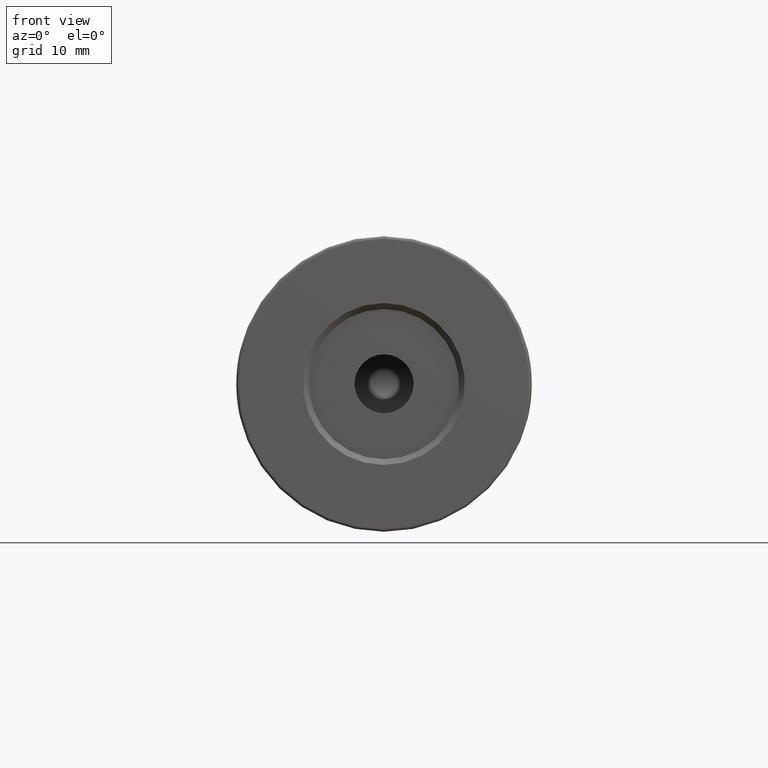
[diagram: clean part render]
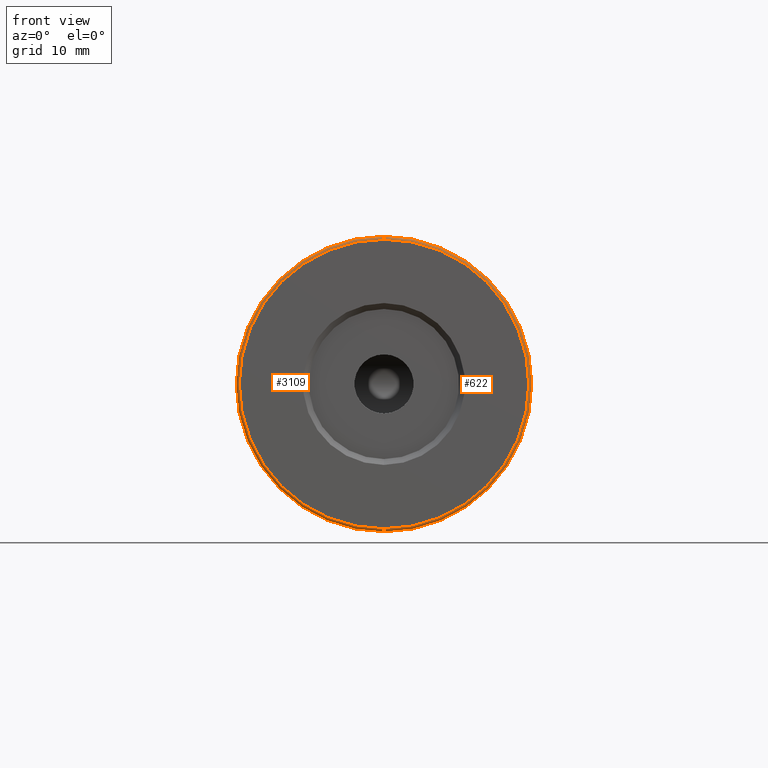
[diagram: same view with one multi-face feature highlighted, each face labeled with its STEP entity id]
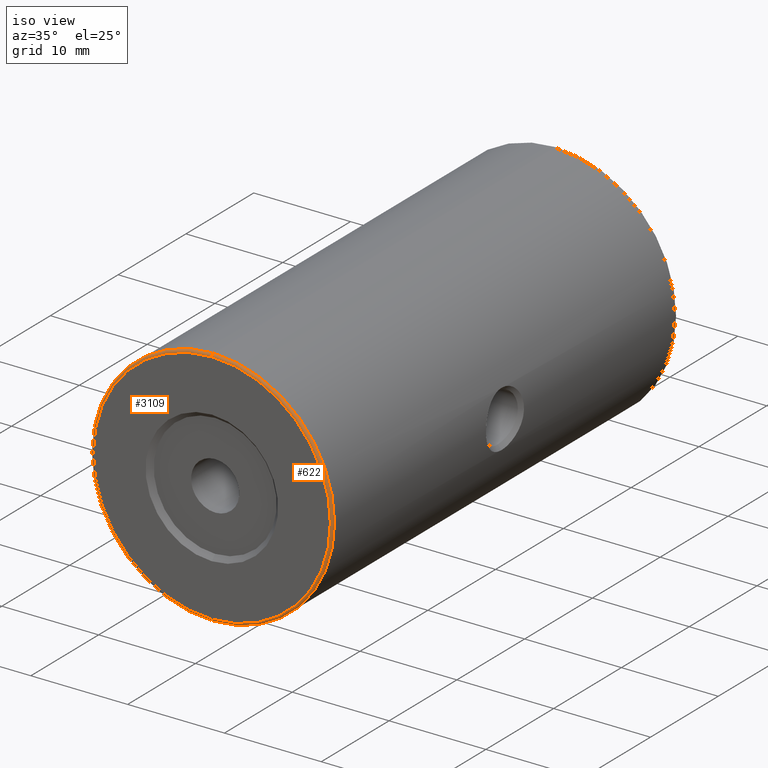
[diagram: same view with one multi-face feature highlighted, each face labeled with its STEP entity id]
A machine part, front view. The highlighted faces form ONE feature: a constant-radius fillet chain: 2 tangent blend faces with common blend radius 0.25 mm. The faces share edges in the B-rep.
A second angle (iso view) of the same feature is appended — it is thin or edge-on in the first view.
Their STEP definitions:
[1] entity #622 (Torus):
#319 = CARTESIAN_POINT ( 'NONE',  ( -22.50520183104453409, -24.00174781523060830, 50.00000000000000000 ) ) ;
#463 = CARTESIAN_POINT ( 'NONE',  ( -22.50520183104453409, -23.75174781523060830, 50.00000000000000000 ) ) ;
#586 = CARTESIAN_POINT ( 'NONE',  ( -22.50520183104453409, -24.00174781523060830, 62.25000000000000000 ) ) ;
#588 = ORIENTED_EDGE ( 'NONE', *, *, #2775, .F. ) ;
#593 = DIRECTION ( 'NONE',  ( -1.000000000000000000, 0.0000000000000000000, 0.0000000000000000000 ) ) ;
#622 = ADVANCED_FACE ( 'NONE', ( #3374 ), #2100, .T. ) ;
#626 = CARTESIAN_POINT ( 'NONE',  ( -22.50520183104453409, -23.75174781523060830, 50.00000000000000000 ) ) ;
#766 = CIRCLE ( 'NONE', #1828, 12.24999999999999645 ) ;
#938 = DIRECTION ( 'NONE',  ( 1.000000000000000000, -0.0000000000000000000, 1.224646799147353207E-16 ) ) ;
#1101 = ORIENTED_EDGE ( 'NONE', *, *, #3253, .T. ) ;
#1210 = AXIS2_PLACEMENT_3D ( 'NONE', #3226, #593, #1637 ) ;
#1385 = DIRECTION ( 'NONE',  ( -0.0000000000000000000, -1.000000000000000000, -0.0000000000000000000 ) ) ;
#1426 = EDGE_CURVE ( 'NONE', #2466, #1564, #2611, .T. ) ;
#1511 = EDGE_CURVE ( 'NONE', #1648, #1793, #766, .T. ) ;
#1564 = VERTEX_POINT ( 'NONE', #2733 ) ;
#1637 = DIRECTION ( 'NONE',  ( 0.0000000000000000000, 0.0000000000000000000, 1.000000000000000000 ) ) ;
#1648 = VERTEX_POINT ( 'NONE', #3104 ) ;
#1649 = DIRECTION ( 'NONE',  ( 0.0000000000000000000, 1.000000000000000000, 0.0000000000000000000 ) ) ;
#1793 = VERTEX_POINT ( 'NONE', #586 ) ;
#1825 = ORIENTED_EDGE ( 'NONE', *, *, #1511, .F. ) ;
#1828 = AXIS2_PLACEMENT_3D ( 'NONE', #319, #1385, #3254 ) ;
#1961 = EDGE_LOOP ( 'NONE', ( #1825, #1101, #2097, #588 ) ) ;
#1998 = DIRECTION ( 'NONE',  ( 0.0000000000000000000, 0.0000000000000000000, -1.000000000000000000 ) ) ;
#2028 = CARTESIAN_POINT ( 'NONE',  ( -22.50520183104453409, -23.75174781523060830, 62.50000000000000000 ) ) ;
#2097 = ORIENTED_EDGE ( 'NONE', *, *, #1426, .F. ) ;
#2098 = AXIS2_PLACEMENT_3D ( 'NONE', #2810, #938, #1998 ) ;
#2100 = TOROIDAL_SURFACE ( 'NONE', #3169, 12.25000000000000000, 0.2500000000000000000 ) ;
#2466 = VERTEX_POINT ( 'NONE', #2028 ) ;
#2495 = AXIS2_PLACEMENT_3D ( 'NONE', #626, #1649, #2713 ) ;
#2611 = CIRCLE ( 'NONE', #2495, 12.49999999999999645 ) ;
#2713 = DIRECTION ( 'NONE',  ( 0.0000000000000000000, 0.0000000000000000000, 1.000000000000000000 ) ) ;
#2733 = CARTESIAN_POINT ( 'NONE',  ( -22.50520183104453409, -23.75174781523060830, 37.50000000000000711 ) ) ;
#2775 = EDGE_CURVE ( 'NONE', #1793, #2466, #2890, .T. ) ;
#2810 = CARTESIAN_POINT ( 'NONE',  ( -22.50520183104453409, -23.75174781523060830, 37.75000000000000711 ) ) ;
#2819 = DIRECTION ( 'NONE',  ( 0.0000000000000000000, 0.0000000000000000000, 1.000000000000000000 ) ) ;
#2837 = CIRCLE ( 'NONE', #2098, 0.2500000000000002220 ) ;
#2890 = CIRCLE ( 'NONE', #1210, 0.2500000000000002220 ) ;
#3104 = CARTESIAN_POINT ( 'NONE',  ( -22.50520183104453409, -24.00174781523060830, 37.75000000000000711 ) ) ;
#3169 = AXIS2_PLACEMENT_3D ( 'NONE', #463, #3391, #2819 ) ;
#3226 = CARTESIAN_POINT ( 'NONE',  ( -22.50520183104453409, -23.75174781523060830, 62.25000000000000000 ) ) ;
#3253 = EDGE_CURVE ( 'NONE', #1648, #1564, #2837, .T. ) ;
#3254 = DIRECTION ( 'NONE',  ( 0.0000000000000000000, 0.0000000000000000000, 1.000000000000000000 ) ) ;
#3374 = FACE_OUTER_BOUND ( 'NONE', #1961, .T. ) ;
#3391 = DIRECTION ( 'NONE',  ( 0.0000000000000000000, 1.000000000000000000, 0.0000000000000000000 ) ) ;
[2] entity #3109 (Torus):
#33 = EDGE_CURVE ( 'NONE', #1564, #2466, #874, .T. ) ;
#149 = DIRECTION ( 'NONE',  ( 0.0000000000000000000, 0.0000000000000000000, 1.000000000000000000 ) ) ;
#164 = DIRECTION ( 'NONE',  ( -0.0000000000000000000, -1.000000000000000000, -0.0000000000000000000 ) ) ;
#181 = CARTESIAN_POINT ( 'NONE',  ( -22.50520183104453409, -24.00174781523060830, 50.00000000000000000 ) ) ;
#323 = DIRECTION ( 'NONE',  ( 0.0000000000000000000, 1.000000000000000000, 0.0000000000000000000 ) ) ;
#355 = EDGE_LOOP ( 'NONE', ( #3187, #2113, #1117, #2199 ) ) ;
#552 = EDGE_CURVE ( 'NONE', #1793, #1648, #1378, .T. ) ;
#586 = CARTESIAN_POINT ( 'NONE',  ( -22.50520183104453409, -24.00174781523060830, 62.25000000000000000 ) ) ;
#593 = DIRECTION ( 'NONE',  ( -1.000000000000000000, 0.0000000000000000000, 0.0000000000000000000 ) ) ;
#607 = AXIS2_PLACEMENT_3D ( 'NONE', #181, #164, #995 ) ;
#874 = CIRCLE ( 'NONE', #3270, 12.49999999999999645 ) ;
#918 = CARTESIAN_POINT ( 'NONE',  ( -22.50520183104453409, -23.75174781523060830, 50.00000000000000000 ) ) ;
#938 = DIRECTION ( 'NONE',  ( 1.000000000000000000, -0.0000000000000000000, 1.224646799147353207E-16 ) ) ;
#995 = DIRECTION ( 'NONE',  ( 0.0000000000000000000, 0.0000000000000000000, 1.000000000000000000 ) ) ;
#1117 = ORIENTED_EDGE ( 'NONE', *, *, #2775, .T. ) ;
#1191 = DIRECTION ( 'NONE',  ( 0.0000000000000000000, 1.000000000000000000, 0.0000000000000000000 ) ) ;
#1210 = AXIS2_PLACEMENT_3D ( 'NONE', #3226, #593, #1637 ) ;
#1378 = CIRCLE ( 'NONE', #607, 12.24999999999999645 ) ;
#1389 = DIRECTION ( 'NONE',  ( 0.0000000000000000000, 0.0000000000000000000, 1.000000000000000000 ) ) ;
#1564 = VERTEX_POINT ( 'NONE', #2733 ) ;
#1637 = DIRECTION ( 'NONE',  ( 0.0000000000000000000, 0.0000000000000000000, 1.000000000000000000 ) ) ;
#1648 = VERTEX_POINT ( 'NONE', #3104 ) ;
#1793 = VERTEX_POINT ( 'NONE', #586 ) ;
#1911 = FACE_OUTER_BOUND ( 'NONE', #355, .T. ) ;
#1998 = DIRECTION ( 'NONE',  ( 0.0000000000000000000, 0.0000000000000000000, -1.000000000000000000 ) ) ;
#2028 = CARTESIAN_POINT ( 'NONE',  ( -22.50520183104453409, -23.75174781523060830, 62.50000000000000000 ) ) ;
#2098 = AXIS2_PLACEMENT_3D ( 'NONE', #2810, #938, #1998 ) ;
#2113 = ORIENTED_EDGE ( 'NONE', *, *, #552, .F. ) ;
#2199 = ORIENTED_EDGE ( 'NONE', *, *, #33, .F. ) ;
#2433 = AXIS2_PLACEMENT_3D ( 'NONE', #2717, #323, #1389 ) ;
#2466 = VERTEX_POINT ( 'NONE', #2028 ) ;
#2717 = CARTESIAN_POINT ( 'NONE',  ( -22.50520183104453409, -23.75174781523060830, 50.00000000000000000 ) ) ;
#2733 = CARTESIAN_POINT ( 'NONE',  ( -22.50520183104453409, -23.75174781523060830, 37.50000000000000711 ) ) ;
#2775 = EDGE_CURVE ( 'NONE', #1793, #2466, #2890, .T. ) ;
#2810 = CARTESIAN_POINT ( 'NONE',  ( -22.50520183104453409, -23.75174781523060830, 37.75000000000000711 ) ) ;
#2837 = CIRCLE ( 'NONE', #2098, 0.2500000000000002220 ) ;
#2890 = CIRCLE ( 'NONE', #1210, 0.2500000000000002220 ) ;
#3104 = CARTESIAN_POINT ( 'NONE',  ( -22.50520183104453409, -24.00174781523060830, 37.75000000000000711 ) ) ;
#3109 = ADVANCED_FACE ( 'NONE', ( #1911 ), #3443, .T. ) ;
#3187 = ORIENTED_EDGE ( 'NONE', *, *, #3253, .F. ) ;
#3226 = CARTESIAN_POINT ( 'NONE',  ( -22.50520183104453409, -23.75174781523060830, 62.25000000000000000 ) ) ;
#3253 = EDGE_CURVE ( 'NONE', #1648, #1564, #2837, .T. ) ;
#3270 = AXIS2_PLACEMENT_3D ( 'NONE', #918, #1191, #149 ) ;
#3443 = TOROIDAL_SURFACE ( 'NONE', #2433, 12.25000000000000000, 0.2500000000000000000 ) ;